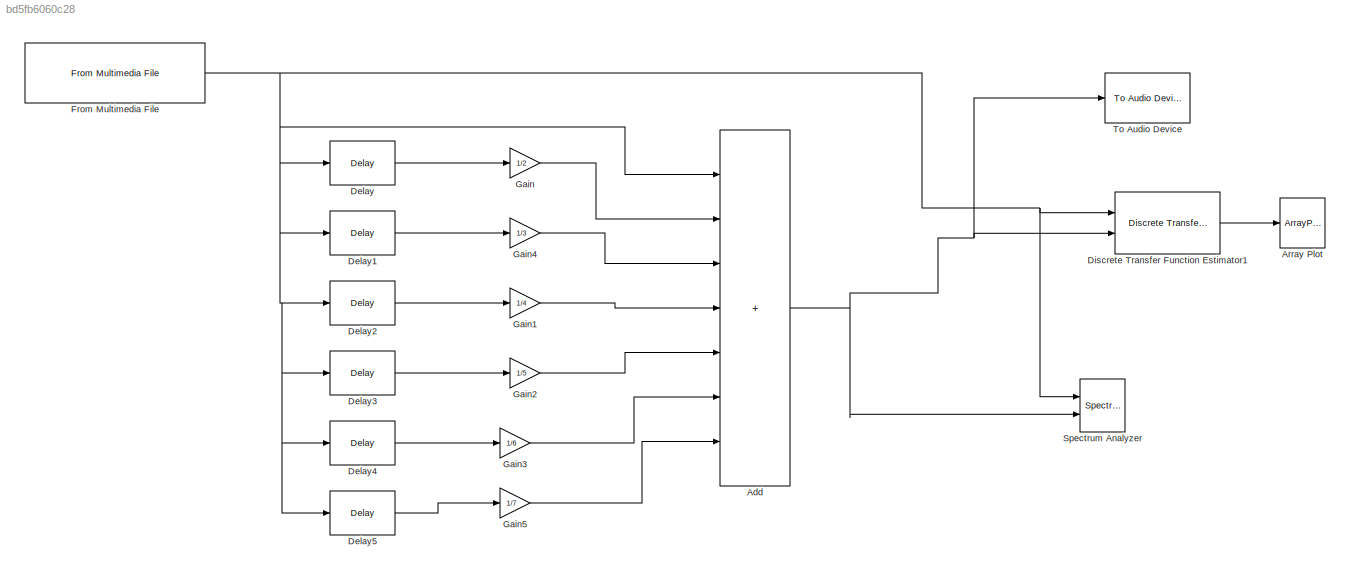
MODEL slx_bd5fb6060c28
KIND model
CONFIG AbsTol = auto
CONFIG EnableMultiTasking = off
CONFIG FixedStep = auto
CONFIG MaxStep = auto
CONFIG MinStep = auto
CONFIG RelTol = 1e-3
CONFIG SampleTimeConstraint = Unconstrained
CONFIG Solver = VariableStepAuto
CONFIG SolverName = VariableStepAuto
CONFIG StartTime = 0.0
CONFIG StopTime = 10.0
BLOCK [Sum] Add
  IconShape = rectangular
  Inputs = +++++++
  Ports = [7, 1]
BLOCK [ArrayPlot] Array Plot
  Ports = [1]
  ScopeSpecificationString = dsp.scopes.ArrayPlotBlockSpecification('CurrentConfiguration', extmgr.ConfigurationSet(extmgr.Configuration('Core','General UI',true),extmgr.Configuration('Core','Source UI',true),extmgr.Configuration('Sources','WiredSimulink',true),extmgr.Configuration('Sources','SimulinkEvent',false),extmgr.Configuration('Sources','Simulink',false),extmgr.Configuration('Sources','SPTool',false),extmgr.Configurat...<+3110ch>
BLOCK [Delay] Delay
  Commented = on
  DelayLength = 11025
  InitialCondition = 0
  InputPortMap = u0
  Ports = [1, 1]
BLOCK [Delay] Delay1
  DelayLength = 5
  InitialCondition = 0
  InputPortMap = u0
  Ports = [1, 1]
BLOCK [Delay] Delay2
  Commented = on
  DelayLength = 33075
  InitialCondition = 0
  InputPortMap = u0
  Ports = [1, 1]
BLOCK [Delay] Delay3
  Commented = on
  DelayLength = 4
  InitialCondition = 0
  InputPortMap = u0
  Ports = [1, 1]
BLOCK [Delay] Delay4
  Commented = on
  DelayLength = 5
  InitialCondition = 0
  InputPortMap = u0
  Ports = [1, 1]
BLOCK [Delay] Delay5
  Commented = on
  DelayLength = 6
  InitialCondition = 0
  InputPortMap = u0
  Ports = [1, 1]
BLOCK [Reference] Discrete Transfer Function Estimator1  REF=dspspect3/Discrete
Transfer Function
Estimator
  Ports = [2, 1]
  SourceBlock = dspspect3/Discrete\nTransfer Function\nEstimator
  SourceProductBaseCode = DS
  SourceType = Discrete Transfer Function Estimator
BLOCK [Reference] From Multimedia File  REF=dspvision/From Multimedia File
  Ports = [0, 1]
  SourceBlock = dspvision/From Multimedia File
  SourceProductBaseCode = DS,HW,VP
  SourceType = From Multimedia File
BLOCK [Gain] Gain
  Commented = on
  Gain = 1/2
BLOCK [Gain] Gain1
  Commented = on
  Gain = 1/4
BLOCK [Gain] Gain2
  Commented = on
  Gain = 1/5
BLOCK [Gain] Gain3
  Commented = on
  Gain = 1/6
BLOCK [Gain] Gain4
  Gain = 1/3
BLOCK [Gain] Gain5
  Commented = on
  Gain = 1/7
BLOCK [SpectrumAnalyzer] Spectrum Analyzer
  Commented = on
  NumInputPorts = 2
  Ports = [2]
  ScopeSpecificationString = spbscopes.SpectrumAnalyzerBlockCfg('CurrentConfiguration', extmgr.ConfigurationSet(extmgr.Configuration('Core','General UI',true),extmgr.Configuration('Core','Source UI',true),extmgr.Configuration('Sources','WiredSimulink',true),extmgr.Configuration('Sources','Simulink',false),extmgr.Configuration('Sources','SimulinkEvent',false),extmgr.Configuration('Sources','File',false),extmgr.Configuration('S...<+3103ch>
BLOCK [Reference] To Audio Device  REF=dspobslib/To Audio
Device
  Ports = [1]
  SourceBlock = dspobslib/To Audio\nDevice
  SourceProductBaseCode = DS
  SourceType = To Audio Device
NET Add:1 -> Discrete Transfer Function Estimator1:2, Spectrum Analyzer:2, To Audio Device:1
LINE Delay1:1 -> Gain4:1
LINE Delay2:1 -> Gain1:1
LINE Delay3:1 -> Gain2:1
LINE Delay4:1 -> Gain3:1
LINE Delay5:1 -> Gain5:1
LINE Delay:1 -> Gain:1
LINE Discrete Transfer Function Estimator1:1 -> Array Plot:1
NET From Multimedia File:1 -> Add:1, Delay1:1, Delay2:1, Delay3:1, Delay4:1, Delay5:1, Delay:1, Discrete Transfer Function Estimator1:1, Spectrum Analyzer:1
LINE Gain1:1 -> Add:4
LINE Gain2:1 -> Add:5
LINE Gain3:1 -> Add:6
LINE Gain4:1 -> Add:3
LINE Gain5:1 -> Add:7
LINE Gain:1 -> Add:2
note: NET lines group one-source signal fan-out (src -> all destinations, sorted); 1:1 wires keep LINE
